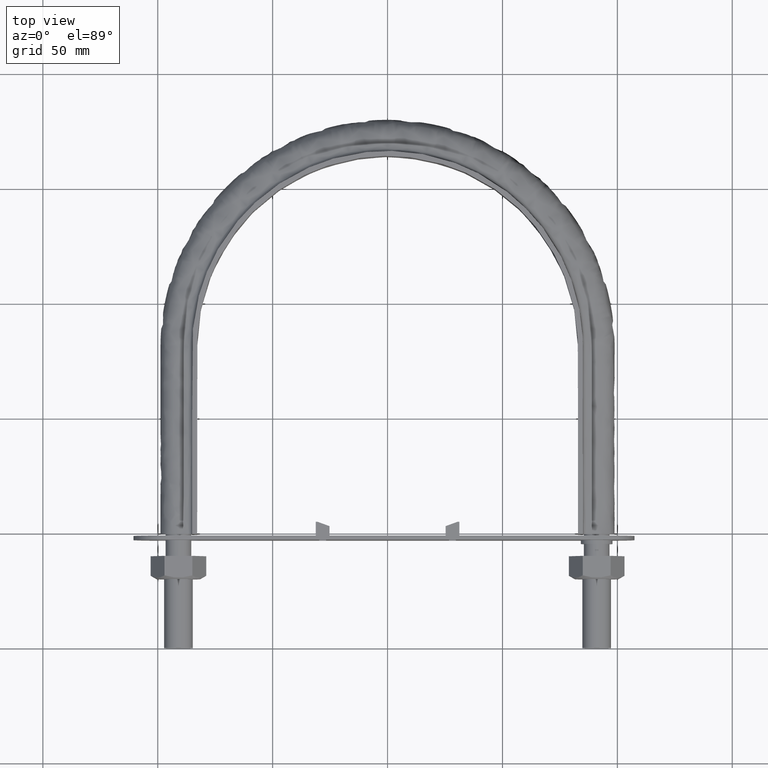
[diagram: clean part render]
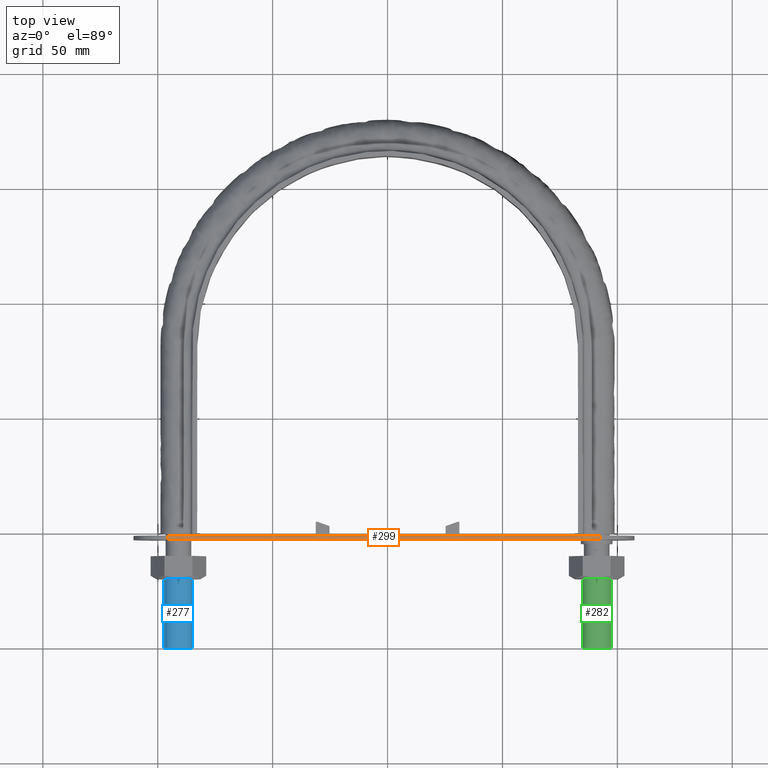
[diagram: same view with three faces highlighted in distinct colors, each labeled with its STEP entity id]
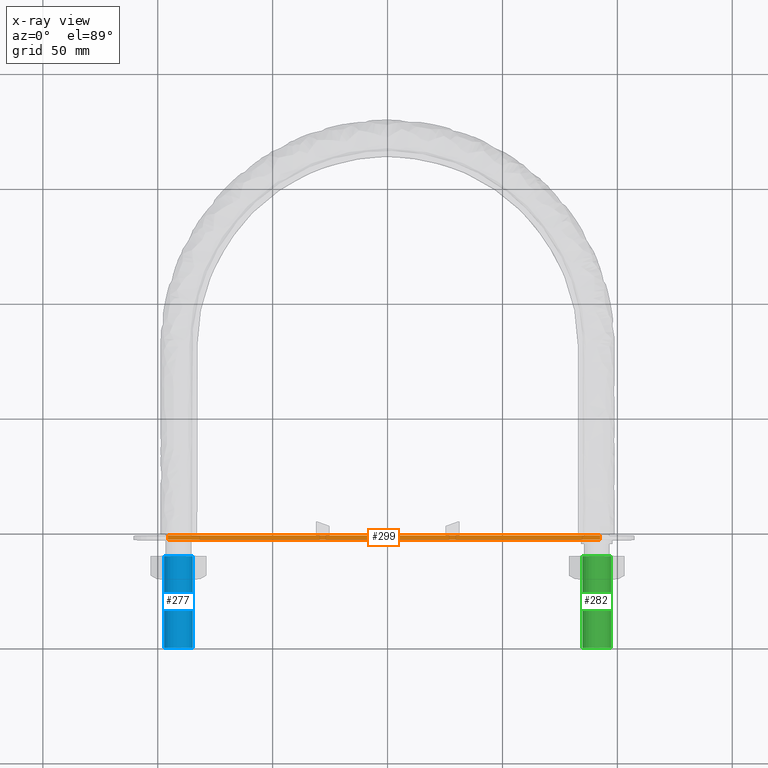
[diagram: x-ray of the same camera — body ghosted, the three highlighted faces saturated]
A machine part, top view with three faces highlighted in distinct colors.
The next image is the same camera in x-ray (body ghosted, the three faces saturated) — at least one of them is partly hidden behind the body in this view.
Their STEP definitions:

[orange] entity #299 — the highlighted planar face has unit normal (0, -0, 1).
#299 = ADVANCED_FACE( '', ( #428 ), #429, .T. );
#428 = FACE_OUTER_BOUND( '', #1514, .T. );
#429 = PLANE( '', #1515 );
#1514 = EDGE_LOOP( '', ( #1884, #1885, #1886, #1887 ) );
#1515 = AXIS2_PLACEMENT_3D( '', #1888, #1889, #1890 );
#1884 = ORIENTED_EDGE( '', *, *, #2267, .F. );
#1885 = ORIENTED_EDGE( '', *, *, #2252, .F. );
#1886 = ORIENTED_EDGE( '', *, *, #2240, .T. );
#1887 = ORIENTED_EDGE( '', *, *, #2289, .T. );
#1888 = CARTESIAN_POINT( '', ( -95.5499999998825, 47.0000000000003, 15.0000000007489 ) );
#1889 = DIRECTION( '', ( 7.83837578177664E-012, -5.38325119449561E-017, 1.00000000000000 ) );
#1890 = DIRECTION( '', ( -1.00000000000000, 2.44484870125622E-016, 7.83837578177664E-012 ) );
#2240 = EDGE_CURVE( '', #2442, #2450, #2452, .T. );
#2252 = EDGE_CURVE( '', #2442, #2472, #2475, .T. );
#2267 = EDGE_CURVE( '', #2472, #2500, #2501, .T. );
#2289 = EDGE_CURVE( '', #2450, #2500, #2536, .T. );
#2442 = VERTEX_POINT( '', #2940 );
#2450 = VERTEX_POINT( '', #2949 );
#2452 = LINE( '', #2951, #2952 );
#2472 = VERTEX_POINT( '', #2978 );
#2475 = LINE( '', #2982, #2983 );
#2500 = VERTEX_POINT( '', #3022 );
#2501 = LINE( '', #3023, #3024 );
#2536 = LINE( '', #3073, #3074 );
#2940 = CARTESIAN_POINT( '', ( -95.5499999998825, 47.0000000000003, 15.0000000007489 ) );
#2949 = CARTESIAN_POINT( '', ( 92.4500000001176, 47.0000000000003, 14.9999999992753 ) );
#2951 = CARTESIAN_POINT( '', ( -95.5499999998825, 47.0000000000003, 15.0000000007489 ) );
#2952 = VECTOR( '', #3424, 1000.00000000000 );
#2978 = CARTESIAN_POINT( '', ( -95.5499999998825, 48.8000000000003, 15.0000000007489 ) );
#2982 = CARTESIAN_POINT( '', ( -95.5499999998825, 47.0000000000003, 15.0000000007489 ) );
#2983 = VECTOR( '', #3444, 1000.00000000000 );
#3022 = CARTESIAN_POINT( '', ( 92.4500000001176, 48.8000000000003, 14.9999999992753 ) );
#3023 = CARTESIAN_POINT( '', ( -95.5499999998825, 48.8000000000003, 15.0000000007489 ) );
#3024 = VECTOR( '', #3459, 1000.00000000000 );
#3073 = CARTESIAN_POINT( '', ( 92.4500000001176, 47.0000000000003, 14.9999999992753 ) );
#3074 = VECTOR( '', #3495, 1000.00000000000 );
#3424 = DIRECTION( '', ( 1.00000000000000, -2.44484870125622E-016, -7.83837578177664E-012 ) );
#3444 = DIRECTION( '', ( 2.44484870126044E-016, 1.00000000000000, 5.38325119430397E-017 ) );
#3459 = DIRECTION( '', ( 1.00000000000000, -2.44484870125622E-016, -7.83837578177664E-012 ) );
#3495 = DIRECTION( '', ( 2.44484870126044E-016, 1.00000000000000, 5.38325119430397E-017 ) );

[blue] entity #277 — the highlighted cylindrical surface (bore or boss wall) has radius 6.25 mm, axis along (0, 1, -0).
#277 = ADVANCED_FACE( '', ( #370, #371 ), #372, .T. );
#370 = FACE_OUTER_BOUND( '', #1456, .T. );
#371 = FACE_OUTER_BOUND( '', #1457, .T. );
#372 = CYLINDRICAL_SURFACE( '', #1458, 6.25000000000001 );
#1456 = EDGE_LOOP( '', ( #1708 ) );
#1457 = EDGE_LOOP( '', ( #1709 ) );
#1458 = AXIS2_PLACEMENT_3D( '', #1710, #1711, #1712 );
#1708 = ORIENTED_EDGE( '', *, *, #2227, .T. );
#1709 = ORIENTED_EDGE( '', *, *, #2226, .F. );
#1710 = CARTESIAN_POINT( '', ( -91.0000000000000, 40.0000000000000, -1.22460635382238E-014 ) );
#1711 = DIRECTION( '', ( 2.44921270764476E-016, 1.00000000000000, -3.06151588455594E-016 ) );
#1712 = DIRECTION( '', ( 1.00000000000000, -2.44921270764475E-016, 0.000000000000000 ) );
#2226 = EDGE_CURVE( '', #2423, #2423, #2424, .T. );
#2227 = EDGE_CURVE( '', #2425, #2425, #2426, .T. );
#2423 = VERTEX_POINT( '', #2917 );
#2424 = CIRCLE( '', #2918, 6.25000000000001 );
#2425 = VERTEX_POINT( '', #2919 );
#2426 = CIRCLE( '', #2920, 6.25000000000001 );
#2917 = CARTESIAN_POINT( '', ( -84.7500000000000, 9.61315987750566E-015, 0.000000000000000 ) );
#2918 = AXIS2_PLACEMENT_3D( '', #3392, #3393, #3394 );
#2919 = CARTESIAN_POINT( '', ( -84.7500000000000, 40.0000000000000, -1.22460635382238E-014 ) );
#2920 = AXIS2_PLACEMENT_3D( '', #3395, #3396, #3397 );
#3392 = CARTESIAN_POINT( '', ( -91.0000000000000, 1.11439178197836E-014, 0.000000000000000 ) );
#3393 = DIRECTION( '', ( -2.44921270764476E-016, -1.00000000000000, 3.06151588455594E-016 ) );
#3394 = DIRECTION( '', ( 1.00000000000000, -2.44921270764475E-016, 0.000000000000000 ) );
#3395 = CARTESIAN_POINT( '', ( -91.0000000000000, 40.0000000000000, -1.22460635382238E-014 ) );
#3396 = DIRECTION( '', ( -2.44921270764476E-016, -1.00000000000000, 3.06151588455594E-016 ) );
#3397 = DIRECTION( '', ( 1.00000000000000, -2.44921270764475E-016, 0.000000000000000 ) );

[green] entity #282 — the highlighted cylindrical surface (bore or boss wall) has radius 6.25 mm, axis along (0, 1, -0).
#282 = ADVANCED_FACE( '', ( #384, #385 ), #386, .T. );
#384 = FACE_OUTER_BOUND( '', #1470, .T. );
#385 = FACE_OUTER_BOUND( '', #1471, .T. );
#386 = CYLINDRICAL_SURFACE( '', #1472, 6.25000000000001 );
#1470 = EDGE_LOOP( '', ( #1739 ) );
#1471 = EDGE_LOOP( '', ( #1740 ) );
#1472 = AXIS2_PLACEMENT_3D( '', #1741, #1742, #1743 );
#1739 = ORIENTED_EDGE( '', *, *, #2230, .T. );
#1740 = ORIENTED_EDGE( '', *, *, #2228, .F. );
#1741 = CARTESIAN_POINT( '', ( 91.0000000000000, 40.0000000000000, -1.22460635382238E-014 ) );
#1742 = DIRECTION( '', ( 2.44921270764476E-016, 1.00000000000000, -3.06151588455594E-016 ) );
#1743 = DIRECTION( '', ( 1.00000000000000, -2.44921270764475E-016, 0.000000000000000 ) );
#2228 = EDGE_CURVE( '', #2427, #2427, #2428, .T. );
#2230 = EDGE_CURVE( '', #2431, #2431, #2432, .T. );
#2427 = VERTEX_POINT( '', #2921 );
#2428 = CIRCLE( '', #2922, 6.25000000000001 );
#2431 = VERTEX_POINT( '', #2925 );
#2432 = CIRCLE( '', #2926, 6.25000000000001 );
#2921 = CARTESIAN_POINT( '', ( 97.2500000000000, -1.26746757620616E-014, 0.000000000000000 ) );
#2922 = AXIS2_PLACEMENT_3D( '', #3398, #3399, #3400 );
#2925 = CARTESIAN_POINT( '', ( 97.2500000000000, 40.0000000000000, -1.22460635382238E-014 ) );
#2926 = AXIS2_PLACEMENT_3D( '', #3404, #3405, #3406 );
#3398 = CARTESIAN_POINT( '', ( 91.0000000000000, -1.11439178197836E-014, 0.000000000000000 ) );
#3399 = DIRECTION( '', ( -2.44921270764476E-016, -1.00000000000000, 3.06151588455594E-016 ) );
#3400 = DIRECTION( '', ( 1.00000000000000, -2.44921270764475E-016, 0.000000000000000 ) );
#3404 = CARTESIAN_POINT( '', ( 91.0000000000000, 40.0000000000000, -1.22460635382238E-014 ) );
#3405 = DIRECTION( '', ( -2.44921270764476E-016, -1.00000000000000, 3.06151588455594E-016 ) );
#3406 = DIRECTION( '', ( 1.00000000000000, -2.44921270764475E-016, 0.000000000000000 ) );